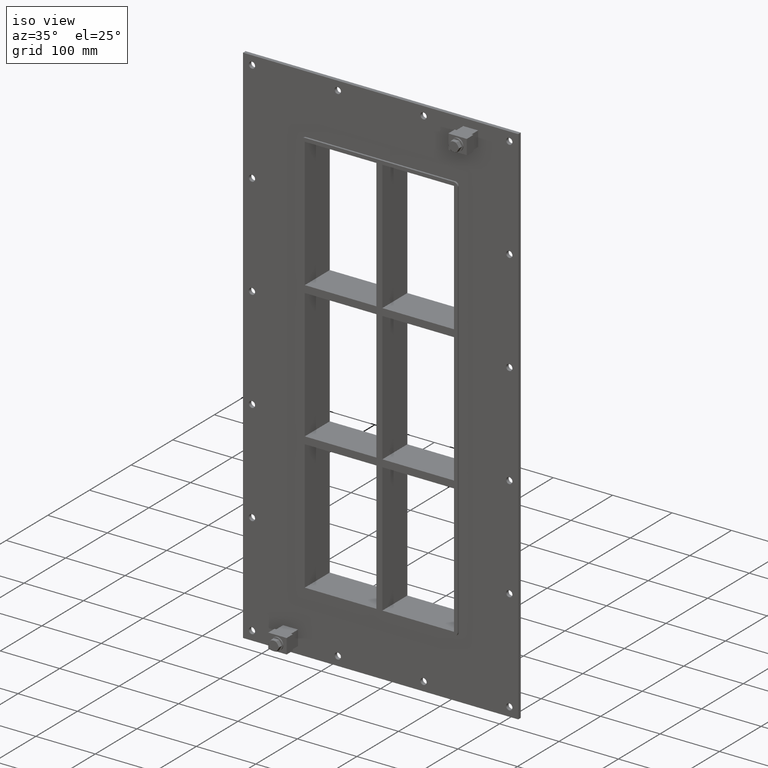
[diagram: clean part render]
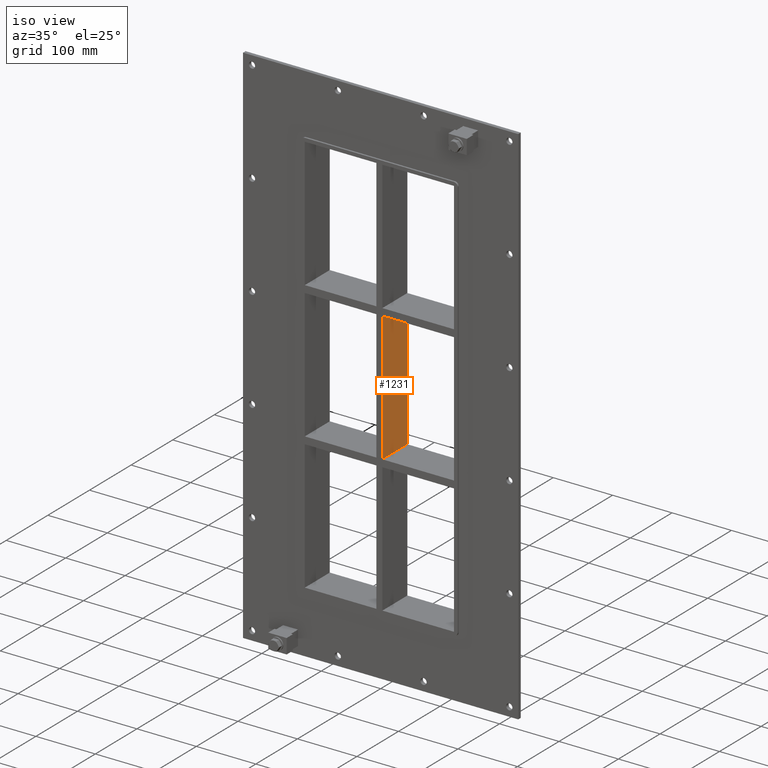
[diagram: same view with one face highlighted and labeled with its STEP entity id]
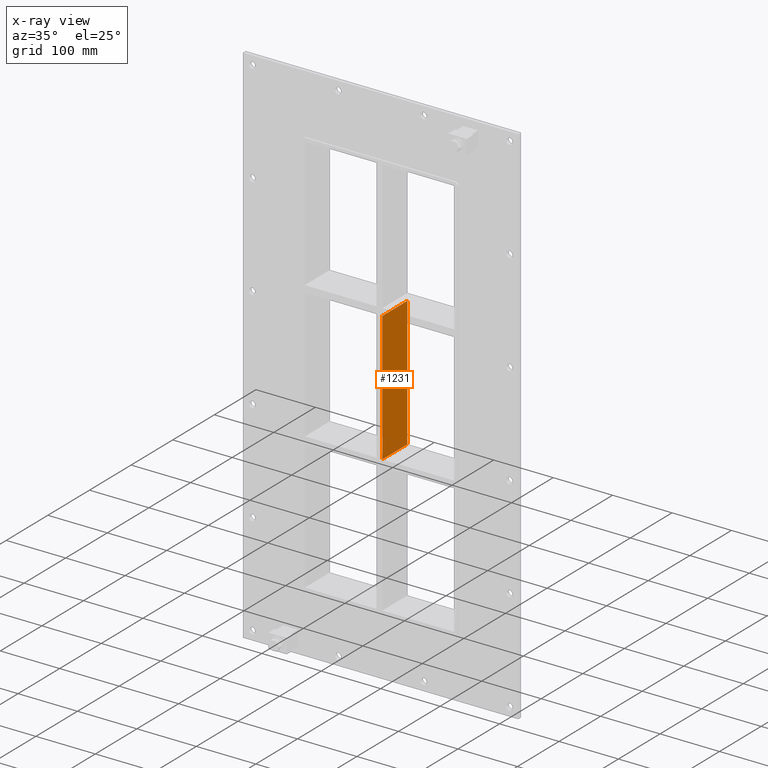
[diagram: x-ray of the same camera — body ghosted, the highlighted face saturated]
A machine part, iso view. The second image highlights one B-rep face of the part: STEP entity #1231.
The next image is the same camera in x-ray: the body ghosted, the highlighted face saturated — about 0% of this face is hidden behind the body in this view.
In plain terms, the highlighted planar face has unit normal (1, 0, 0).
Its self-contained STEP definition (entity closure, byte-faithful):
#521=CARTESIAN_POINT('',(5.0,57.0,108.99999999998923));
#522=VERTEX_POINT('',#521);
#523=CARTESIAN_POINT('',(5.0,-3.0,108.99999999998926));
#524=VERTEX_POINT('',#523);
#525=CARTESIAN_POINT('',(5.0,57.0,108.99999999998923));
#526=DIRECTION('',(0.0,-1.0,0.0));
#527=VECTOR('',#526,60.0);
#528=LINE('',#525,#527);
#529=EDGE_CURVE('',#522,#524,#528,.T.);
#947=CARTESIAN_POINT('',(5.0,-3.0,-109.00000000000091));
#948=VERTEX_POINT('',#947);
#949=CARTESIAN_POINT('',(5.0,57.0,-109.00000000000091));
#950=VERTEX_POINT('',#949);
#951=CARTESIAN_POINT('',(5.0,-3.0,-109.00000000000091));
#952=DIRECTION('',(0.0,1.0,0.0));
#953=VECTOR('',#952,60.0);
#954=LINE('',#951,#953);
#955=EDGE_CURVE('',#948,#950,#954,.T.);
#1150=CARTESIAN_POINT('',(5.0,57.0,108.99999999998923));
#1151=DIRECTION('',(0.0,0.0,-1.0));
#1152=VECTOR('',#1151,217.99999999999014);
#1153=LINE('',#1150,#1152);
#1154=EDGE_CURVE('',#522,#950,#1153,.T.);
#1215=CARTESIAN_POINT('',(5.0,-3.0,339.0));
#1216=DIRECTION('',(1.0,0.0,0.0));
#1217=DIRECTION('',(0.0,0.0,-1.0));
#1218=AXIS2_PLACEMENT_3D('',#1215,#1216,#1217);
#1219=PLANE('',#1218);
#1220=ORIENTED_EDGE('',*,*,#529,.T.);
#1221=CARTESIAN_POINT('',(5.0,-3.0,108.99999999998926));
#1222=DIRECTION('',(0.0,0.0,-1.0));
#1223=VECTOR('',#1222,217.99999999999017);
#1224=LINE('',#1221,#1223);
#1225=EDGE_CURVE('',#524,#948,#1224,.T.);
#1226=ORIENTED_EDGE('',*,*,#1225,.T.);
#1227=ORIENTED_EDGE('',*,*,#955,.T.);
#1228=ORIENTED_EDGE('',*,*,#1154,.F.);
#1229=EDGE_LOOP('',(#1220,#1226,#1227,#1228));
#1230=FACE_OUTER_BOUND('',#1229,.T.);
#1231=ADVANCED_FACE('',(#1230),#1219,.T.);